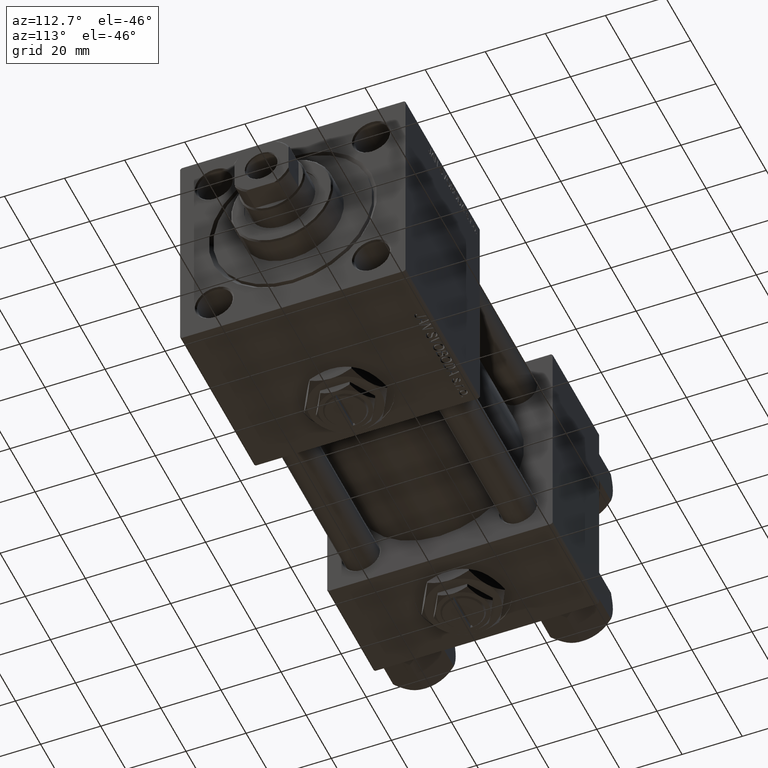
[diagram: clean part render]
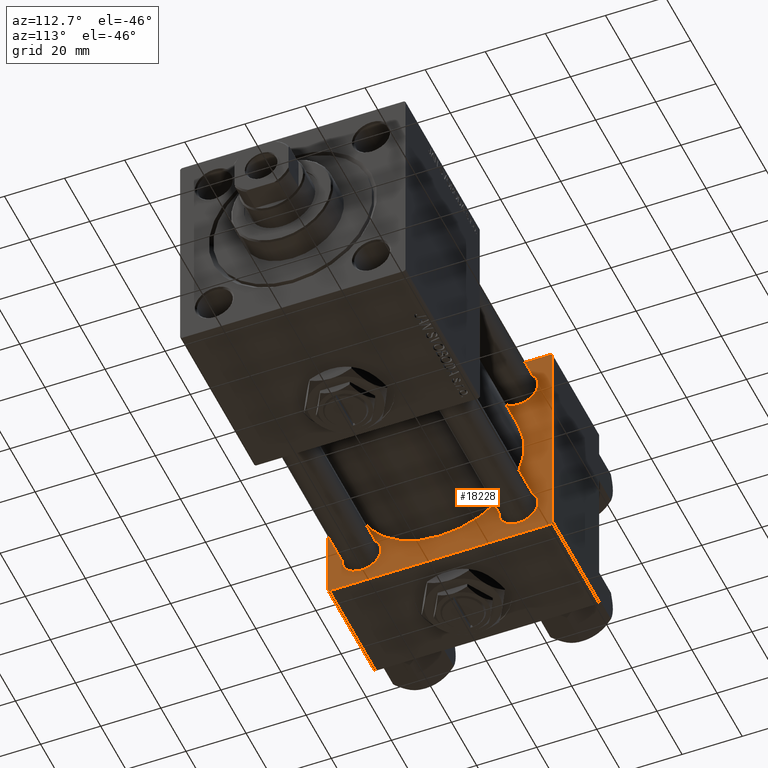
[diagram: same view with one face highlighted and labeled with its STEP entity id]
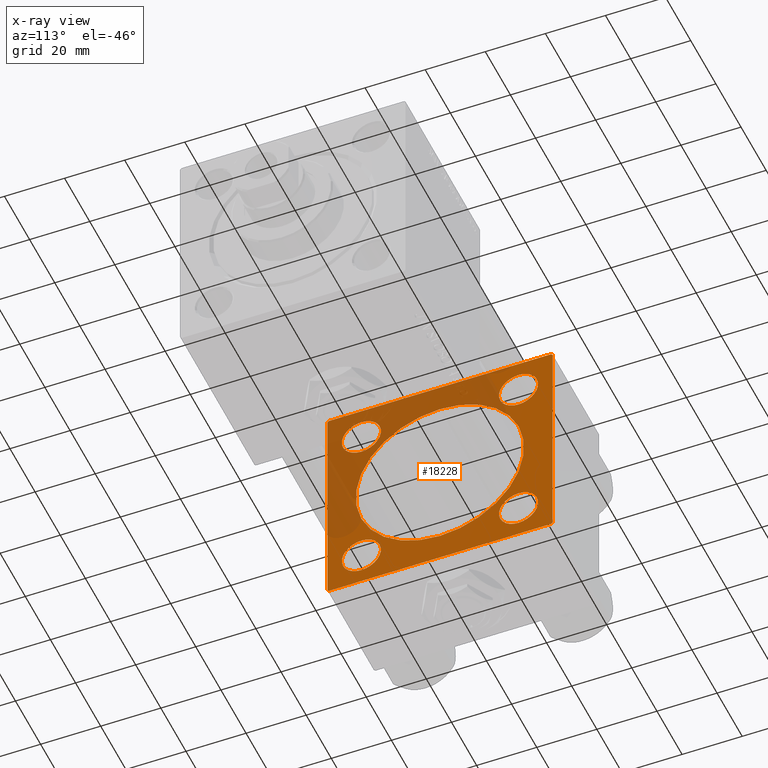
[diagram: x-ray of the same camera — body ghosted, the highlighted face saturated]
A machine part, auxiliary view. The second image highlights one B-rep face of the part: STEP entity #18228.
The next image is the same camera in x-ray: the body ghosted, the highlighted face saturated — about 39% of this face is hidden behind the body in this view.
In plain terms, the highlighted planar face has unit normal (-1, 0, 0).
Its self-contained STEP definition (entity closure, byte-faithful):
#28 = ORIENTED_EDGE ( 'NONE', *, *, #17329, .T. ) ;
#1188 = DIRECTION ( 'NONE',  ( 0.000000000000000000, 0.000000000000000000, 1.000000000000000000 ) ) ;
#1461 = LINE ( 'NONE', #50596, #46404 ) ;
#1482 = EDGE_CURVE ( 'NONE', #25059, #16519, #25770, .T. ) ;
#1602 = DIRECTION ( 'NONE',  ( 0.000000000000000000, 0.7071067811865524577, -0.7071067811865426878 ) ) ;
#2778 = ORIENTED_EDGE ( 'NONE', *, *, #41941, .T. ) ;
#3904 = ORIENTED_EDGE ( 'NONE', *, *, #1482, .T. ) ;
#3910 = CARTESIAN_POINT ( 'NONE',  ( 37.00000000000000000, 26.14999999999999858, -32.65000000000003411 ) ) ;
#4538 = EDGE_CURVE ( 'NONE', #35764, #20758, #14707, .T. ) ;
#4894 = CIRCLE ( 'NONE', #30190, 6.500000000000030198 ) ;
#5069 = EDGE_CURVE ( 'NONE', #41988, #41419, #16433, .T. ) ;
#5140 = CARTESIAN_POINT ( 'NONE',  ( 37.00000000000000000, 26.14999999999999858, 26.15000000000000213 ) ) ;
#5420 = ORIENTED_EDGE ( 'NONE', *, *, #50714, .F. ) ;
#5718 = DIRECTION ( 'NONE',  ( 0.000000000000000000, -0.7071067811865474617, 0.7071067811865474617 ) ) ;
#6303 = FACE_OUTER_BOUND ( 'NONE', #11693, .T. ) ;
#6392 = VERTEX_POINT ( 'NONE', #49418 ) ;
#6741 = EDGE_CURVE ( 'NONE', #24656, #6392, #26155, .T. ) ;
#7171 = CARTESIAN_POINT ( 'NONE',  ( 37.00000000000000000, -26.14999999999999147, 19.65000000000000213 ) ) ;
#7223 = CARTESIAN_POINT ( 'NONE',  ( 37.00000000000000000, -26.14999999999999147, 26.15000000000000924 ) ) ;
#7227 = CARTESIAN_POINT ( 'NONE',  ( 37.00000000000000000, -37.50000000000000711, 36.99999999999999289 ) ) ;
#7606 = CARTESIAN_POINT ( 'NONE',  ( 37.00000000000000000, -26.14999999999999147, 26.15000000000000924 ) ) ;
#8816 = AXIS2_PLACEMENT_3D ( 'NONE', #15775, #44857, #12349 ) ;
#9376 = DIRECTION ( 'NONE',  ( 0.000000000000000000, 9.251858538542971581E-17, -1.000000000000000000 ) ) ;
#9686 = CIRCLE ( 'NONE', #20633, 6.500000000000002665 ) ;
#9995 = FACE_BOUND ( 'NONE', #13546, .T. ) ;
#10014 = AXIS2_PLACEMENT_3D ( 'NONE', #24767, #41158, #37439 ) ;
#10183 = LINE ( 'NONE', #29740, #32776 ) ;
#10258 = FACE_BOUND ( 'NONE', #23369, .T. ) ;
#10525 = CARTESIAN_POINT ( 'NONE',  ( 37.00000000000000000, 36.99999999999997868, -37.50000000000000000 ) ) ;
#10908 = DIRECTION ( 'NONE',  ( 0.000000000000000000, 0.000000000000000000, 1.000000000000000000 ) ) ;
#11693 = EDGE_LOOP ( 'NONE', ( #13146, #44926, #5420, #3904, #35327, #39870, #49968, #48787 ) ) ;
#11890 = CARTESIAN_POINT ( 'NONE',  ( 37.00000000000000000, 37.49999999999999289, 37.50000000000000000 ) ) ;
#12205 = VERTEX_POINT ( 'NONE', #10525 ) ;
#12327 = EDGE_CURVE ( 'NONE', #49332, #50677, #19081, .T. ) ;
#12349 = DIRECTION ( 'NONE',  ( 0.000000000000000000, 0.000000000000000000, 1.000000000000000000 ) ) ;
#12364 = ORIENTED_EDGE ( 'NONE', *, *, #43694, .T. ) ;
#12654 = CARTESIAN_POINT ( 'NONE',  ( 37.00000000000000000, -2.602085213965210642E-15, 0.000000000000000000 ) ) ;
#13146 = ORIENTED_EDGE ( 'NONE', *, *, #41566, .F. ) ;
#13546 = EDGE_LOOP ( 'NONE', ( #18548, #22708 ) ) ;
#13582 = DIRECTION ( 'NONE',  ( -0.000000000000000000, 0.7071067811865474617, 0.7071067811865474617 ) ) ;
#14707 = CIRCLE ( 'NONE', #16397, 28.00000000000000000 ) ;
#15080 = DIRECTION ( 'NONE',  ( -1.000000000000000000, 0.000000000000000000, -0.000000000000000000 ) ) ;
#15463 = EDGE_CURVE ( 'NONE', #46560, #34788, #4894, .T. ) ;
#15617 = CARTESIAN_POINT ( 'NONE',  ( 37.00000000000000000, 37.49999999999999289, 37.00000000000000000 ) ) ;
#15775 = CARTESIAN_POINT ( 'NONE',  ( 37.00000000000000000, -26.14999999999999147, -26.15000000000000924 ) ) ;
#16397 = AXIS2_PLACEMENT_3D ( 'NONE', #28736, #36924, #40375 ) ;
#16433 = CIRCLE ( 'NONE', #35013, 6.500000000000030198 ) ;
#16458 = EDGE_CURVE ( 'NONE', #49123, #33688, #46613, .T. ) ;
#16519 = VERTEX_POINT ( 'NONE', #44201 ) ;
#17019 = ORIENTED_EDGE ( 'NONE', *, *, #5069, .T. ) ;
#17329 = EDGE_CURVE ( 'NONE', #41419, #41988, #26862, .T. ) ;
#17559 = EDGE_CURVE ( 'NONE', #16519, #49123, #10183, .T. ) ;
#18228 = ADVANCED_FACE ( 'NONE', ( #22144, #10258, #30078, #46200, #9995, #6303 ), #49905, .F. ) ;
#18359 = CARTESIAN_POINT ( 'NONE',  ( 37.00000000000000000, -37.50000000000000000, -37.00000000000003553 ) ) ;
#18423 = DIRECTION ( 'NONE',  ( -1.000000000000000000, 0.000000000000000000, -0.000000000000000000 ) ) ;
#18470 = CARTESIAN_POINT ( 'NONE',  ( 37.00000000000000000, -37.00000000000002132, -37.50000000000000711 ) ) ;
#18548 = ORIENTED_EDGE ( 'NONE', *, *, #35756, .F. ) ;
#18905 = CIRCLE ( 'NONE', #8816, 6.500000000000002665 ) ;
#19081 = CIRCLE ( 'NONE', #27540, 6.500000000000008882 ) ;
#19483 = CIRCLE ( 'NONE', #44806, 28.00000000000000000 ) ;
#20633 = AXIS2_PLACEMENT_3D ( 'NONE', #46575, #15080, #47351 ) ;
#20758 = VERTEX_POINT ( 'NONE', #47608 ) ;
#20838 = DIRECTION ( 'NONE',  ( 1.000000000000000000, -0.000000000000000000, 0.000000000000000000 ) ) ;
#21930 = CARTESIAN_POINT ( 'NONE',  ( 37.00000000000000000, -26.14999999999999147, -19.65000000000000924 ) ) ;
#22144 = FACE_BOUND ( 'NONE', #51499, .T. ) ;
#22407 = CARTESIAN_POINT ( 'NONE',  ( 37.00000000000000000, 37.49999999999999289, -36.99999999999998579 ) ) ;
#22605 = VECTOR ( 'NONE', #42907, 1000.000000000000114 ) ;
#22708 = ORIENTED_EDGE ( 'NONE', *, *, #4538, .F. ) ;
#22869 = LINE ( 'NONE', #51677, #36572 ) ;
#23103 = AXIS2_PLACEMENT_3D ( 'NONE', #33930, #37107, #1188 ) ;
#23369 = EDGE_LOOP ( 'NONE', ( #28, #17019 ) ) ;
#24656 = VERTEX_POINT ( 'NONE', #18359 ) ;
#24767 = CARTESIAN_POINT ( 'NONE',  ( 37.00000000000000000, 26.14999999999999858, -26.15000000000000213 ) ) ;
#24938 = VECTOR ( 'NONE', #31464, 1000.000000000000000 ) ;
#24980 = EDGE_LOOP ( 'NONE', ( #2778, #26726 ) ) ;
#25059 = VERTEX_POINT ( 'NONE', #15617 ) ;
#25194 = DIRECTION ( 'NONE',  ( 0.000000000000000000, 0.000000000000000000, 1.000000000000000000 ) ) ;
#25770 = LINE ( 'NONE', #31494, #33164 ) ;
#26155 = LINE ( 'NONE', #18470, #30838 ) ;
#26627 = DIRECTION ( 'NONE',  ( -0.000000000000000000, 0.000000000000000000, 1.000000000000000000 ) ) ;
#26726 = ORIENTED_EDGE ( 'NONE', *, *, #12327, .T. ) ;
#26862 = CIRCLE ( 'NONE', #10014, 6.500000000000030198 ) ;
#27540 = AXIS2_PLACEMENT_3D ( 'NONE', #7606, #27941, #28473 ) ;
#27619 = CARTESIAN_POINT ( 'NONE',  ( 37.00000000000000000, -26.14999999999999147, 32.65000000000001990 ) ) ;
#27941 = DIRECTION ( 'NONE',  ( -1.000000000000000000, 0.000000000000000000, -0.000000000000000000 ) ) ;
#28473 = DIRECTION ( 'NONE',  ( 0.000000000000000000, 0.000000000000000000, 1.000000000000000000 ) ) ;
#28736 = CARTESIAN_POINT ( 'NONE',  ( 37.00000000000000000, -2.602085213965210642E-15, 0.000000000000000000 ) ) ;
#29192 = LINE ( 'NONE', #45564, #51490 ) ;
#29226 = CARTESIAN_POINT ( 'NONE',  ( 37.00000000000000000, -37.50000000000000711, 36.99999999999999289 ) ) ;
#29465 = EDGE_CURVE ( 'NONE', #33688, #24656, #29192, .T. ) ;
#29623 = EDGE_CURVE ( 'NONE', #12205, #34154, #1461, .T. ) ;
#29740 = CARTESIAN_POINT ( 'NONE',  ( 37.00000000000000000, 37.49999999999999289, 37.50000000000000000 ) ) ;
#30078 = FACE_BOUND ( 'NONE', #24980, .T. ) ;
#30190 = AXIS2_PLACEMENT_3D ( 'NONE', #5140, #45286, #25194 ) ;
#30838 = VECTOR ( 'NONE', #1602, 1000.000000000000000 ) ;
#31087 = EDGE_LOOP ( 'NONE', ( #44672, #41180 ) ) ;
#31464 = DIRECTION ( 'NONE',  ( 0.000000000000000000, 0.000000000000000000, -1.000000000000000000 ) ) ;
#31494 = CARTESIAN_POINT ( 'NONE',  ( 37.00000000000000000, 36.99999999999999289, 37.50000000000000000 ) ) ;
#31792 = CARTESIAN_POINT ( 'NONE',  ( 37.00000000000000000, 26.14999999999999858, 32.65000000000004121 ) ) ;
#31981 = AXIS2_PLACEMENT_3D ( 'NONE', #42239, #18423, #26627 ) ;
#32776 = VECTOR ( 'NONE', #45858, 1000.000000000000000 ) ;
#33070 = VERTEX_POINT ( 'NONE', #21930 ) ;
#33164 = VECTOR ( 'NONE', #5718, 1000.000000000000114 ) ;
#33688 = VERTEX_POINT ( 'NONE', #29226 ) ;
#33930 = CARTESIAN_POINT ( 'NONE',  ( 37.00000000000000000, 26.14999999999999858, 26.15000000000000213 ) ) ;
#34154 = VERTEX_POINT ( 'NONE', #22407 ) ;
#34717 = DIRECTION ( 'NONE',  ( -1.000000000000000000, 0.000000000000000000, -0.000000000000000000 ) ) ;
#34788 = VERTEX_POINT ( 'NONE', #46150 ) ;
#34965 = DIRECTION ( 'NONE',  ( 0.000000000000000000, 0.000000000000000000, 1.000000000000000000 ) ) ;
#35013 = AXIS2_PLACEMENT_3D ( 'NONE', #47139, #34717, #34965 ) ;
#35327 = ORIENTED_EDGE ( 'NONE', *, *, #17559, .T. ) ;
#35683 = LINE ( 'NONE', #11890, #24938 ) ;
#35756 = EDGE_CURVE ( 'NONE', #20758, #35764, #19483, .T. ) ;
#35764 = VERTEX_POINT ( 'NONE', #48882 ) ;
#36572 = VECTOR ( 'NONE', #43223, 1000.000000000000000 ) ;
#36924 = DIRECTION ( 'NONE',  ( 1.000000000000000000, -0.000000000000000000, 0.000000000000000000 ) ) ;
#37107 = DIRECTION ( 'NONE',  ( -1.000000000000000000, 0.000000000000000000, -0.000000000000000000 ) ) ;
#37419 = ORIENTED_EDGE ( 'NONE', *, *, #47895, .T. ) ;
#37439 = DIRECTION ( 'NONE',  ( 0.000000000000000000, 0.000000000000000000, 1.000000000000000000 ) ) ;
#38933 = DIRECTION ( 'NONE',  ( -1.000000000000000000, 0.000000000000000000, -0.000000000000000000 ) ) ;
#39870 = ORIENTED_EDGE ( 'NONE', *, *, #16458, .T. ) ;
#40375 = DIRECTION ( 'NONE',  ( 0.000000000000000000, 0.000000000000000000, 1.000000000000000000 ) ) ;
#41158 = DIRECTION ( 'NONE',  ( -1.000000000000000000, 0.000000000000000000, -0.000000000000000000 ) ) ;
#41180 = ORIENTED_EDGE ( 'NONE', *, *, #15463, .T. ) ;
#41419 = VERTEX_POINT ( 'NONE', #3910 ) ;
#41566 = EDGE_CURVE ( 'NONE', #12205, #6392, #22869, .T. ) ;
#41941 = EDGE_CURVE ( 'NONE', #50677, #49332, #42516, .T. ) ;
#41988 = VERTEX_POINT ( 'NONE', #43416 ) ;
#42239 = CARTESIAN_POINT ( 'NONE',  ( 37.00000000000000000, 0.000000000000000000, 0.000000000000000000 ) ) ;
#42482 = AXIS2_PLACEMENT_3D ( 'NONE', #7223, #38933, #10908 ) ;
#42516 = CIRCLE ( 'NONE', #42482, 6.500000000000008882 ) ;
#42551 = CIRCLE ( 'NONE', #23103, 6.500000000000030198 ) ;
#42881 = EDGE_CURVE ( 'NONE', #34788, #46560, #42551, .T. ) ;
#42907 = DIRECTION ( 'NONE',  ( -0.000000000000000000, -0.7071067811865474617, -0.7071067811865474617 ) ) ;
#43223 = DIRECTION ( 'NONE',  ( 0.000000000000000000, -1.000000000000000000, -9.251858538542972814E-17 ) ) ;
#43416 = CARTESIAN_POINT ( 'NONE',  ( 37.00000000000000000, 26.14999999999999858, -19.64999999999997371 ) ) ;
#43427 = CARTESIAN_POINT ( 'NONE',  ( 37.00000000000000000, -26.14999999999999147, -32.65000000000001279 ) ) ;
#43694 = EDGE_CURVE ( 'NONE', #33070, #44435, #18905, .T. ) ;
#44201 = CARTESIAN_POINT ( 'NONE',  ( 37.00000000000000000, 36.99999999999999289, 37.50000000000000000 ) ) ;
#44435 = VERTEX_POINT ( 'NONE', #43427 ) ;
#44672 = ORIENTED_EDGE ( 'NONE', *, *, #42881, .T. ) ;
#44806 = AXIS2_PLACEMENT_3D ( 'NONE', #12654, #20838, #45694 ) ;
#44857 = DIRECTION ( 'NONE',  ( -1.000000000000000000, 0.000000000000000000, -0.000000000000000000 ) ) ;
#44926 = ORIENTED_EDGE ( 'NONE', *, *, #29623, .T. ) ;
#45286 = DIRECTION ( 'NONE',  ( -1.000000000000000000, 0.000000000000000000, -0.000000000000000000 ) ) ;
#45564 = CARTESIAN_POINT ( 'NONE',  ( 37.00000000000000000, -37.50000000000000711, 37.49999999999999289 ) ) ;
#45694 = DIRECTION ( 'NONE',  ( 0.000000000000000000, 0.000000000000000000, 1.000000000000000000 ) ) ;
#45858 = DIRECTION ( 'NONE',  ( 0.000000000000000000, -1.000000000000000000, -9.251858538542971581E-17 ) ) ;
#46150 = CARTESIAN_POINT ( 'NONE',  ( 37.00000000000000000, 26.14999999999999858, 19.64999999999997016 ) ) ;
#46200 = FACE_BOUND ( 'NONE', #31087, .T. ) ;
#46404 = VECTOR ( 'NONE', #13582, 1000.000000000000114 ) ;
#46560 = VERTEX_POINT ( 'NONE', #31792 ) ;
#46575 = CARTESIAN_POINT ( 'NONE',  ( 37.00000000000000000, -26.14999999999999147, -26.15000000000000924 ) ) ;
#46613 = LINE ( 'NONE', #7227, #22605 ) ;
#47139 = CARTESIAN_POINT ( 'NONE',  ( 37.00000000000000000, 26.14999999999999858, -26.15000000000000213 ) ) ;
#47351 = DIRECTION ( 'NONE',  ( 0.000000000000000000, 0.000000000000000000, 1.000000000000000000 ) ) ;
#47608 = CARTESIAN_POINT ( 'NONE',  ( 37.00000000000000000, -2.602085213965210642E-15, 28.00000000000000000 ) ) ;
#47895 = EDGE_CURVE ( 'NONE', #44435, #33070, #9686, .T. ) ;
#48787 = ORIENTED_EDGE ( 'NONE', *, *, #6741, .T. ) ;
#48882 = CARTESIAN_POINT ( 'NONE',  ( 37.00000000000000000, 8.269258236473776482E-16, -28.00000000000000000 ) ) ;
#49123 = VERTEX_POINT ( 'NONE', #51221 ) ;
#49332 = VERTEX_POINT ( 'NONE', #27619 ) ;
#49418 = CARTESIAN_POINT ( 'NONE',  ( 37.00000000000000000, -37.00000000000002132, -37.50000000000000711 ) ) ;
#49905 = PLANE ( 'NONE',  #31981 ) ;
#49968 = ORIENTED_EDGE ( 'NONE', *, *, #29465, .T. ) ;
#50596 = CARTESIAN_POINT ( 'NONE',  ( 37.00000000000000000, 37.49999999999999289, -36.99999999999998579 ) ) ;
#50677 = VERTEX_POINT ( 'NONE', #7171 ) ;
#50714 = EDGE_CURVE ( 'NONE', #25059, #34154, #35683, .T. ) ;
#51221 = CARTESIAN_POINT ( 'NONE',  ( 37.00000000000000000, -37.00000000000000711, 37.49999999999999289 ) ) ;
#51490 = VECTOR ( 'NONE', #9376, 1000.000000000000000 ) ;
#51499 = EDGE_LOOP ( 'NONE', ( #37419, #12364 ) ) ;
#51677 = CARTESIAN_POINT ( 'NONE',  ( 37.00000000000000000, 37.49999999999999289, -37.50000000000000000 ) ) ;